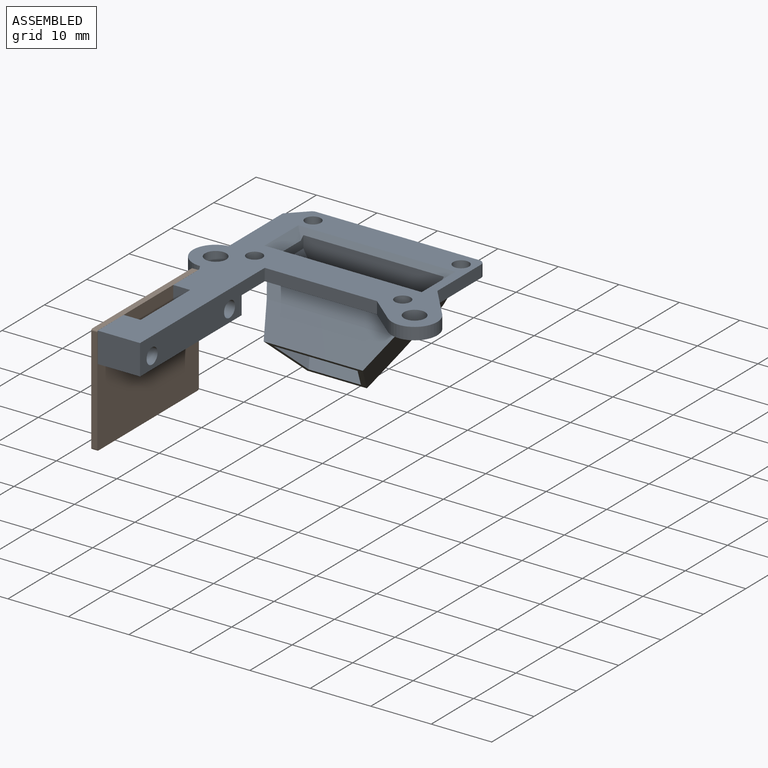
[diagram: assembled view]
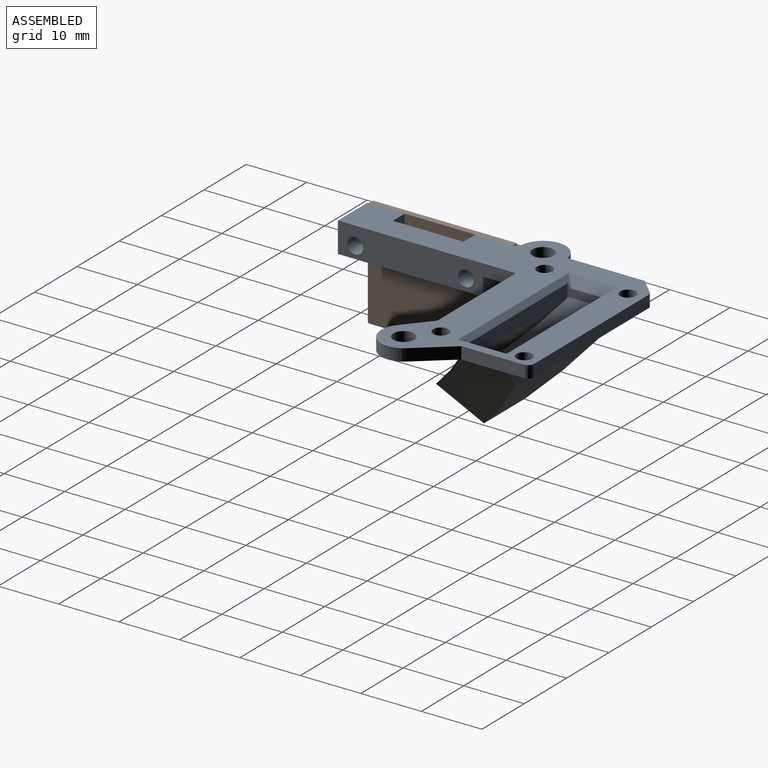
[diagram: assembled view, second angle]
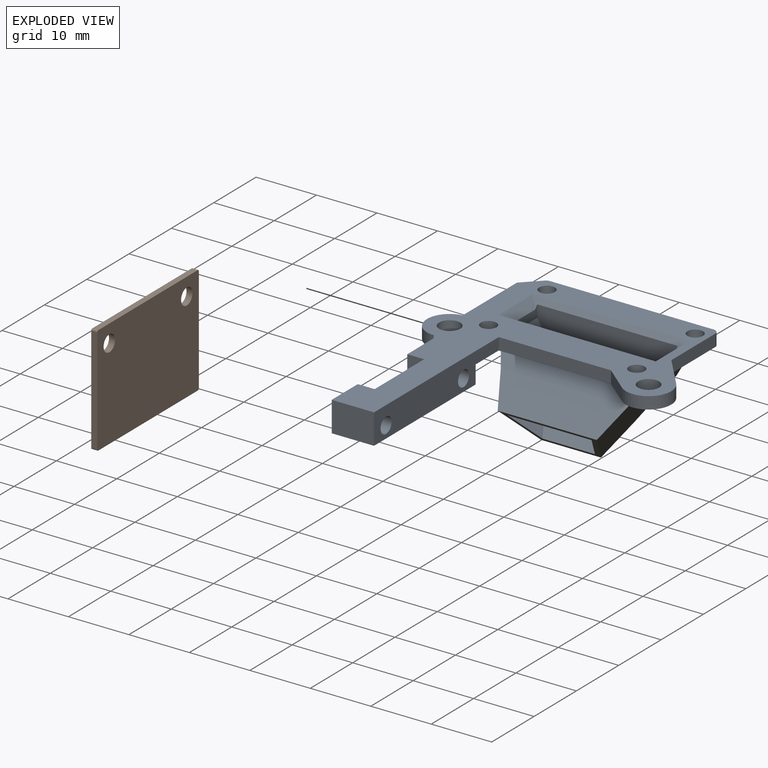
[diagram: exploded view]
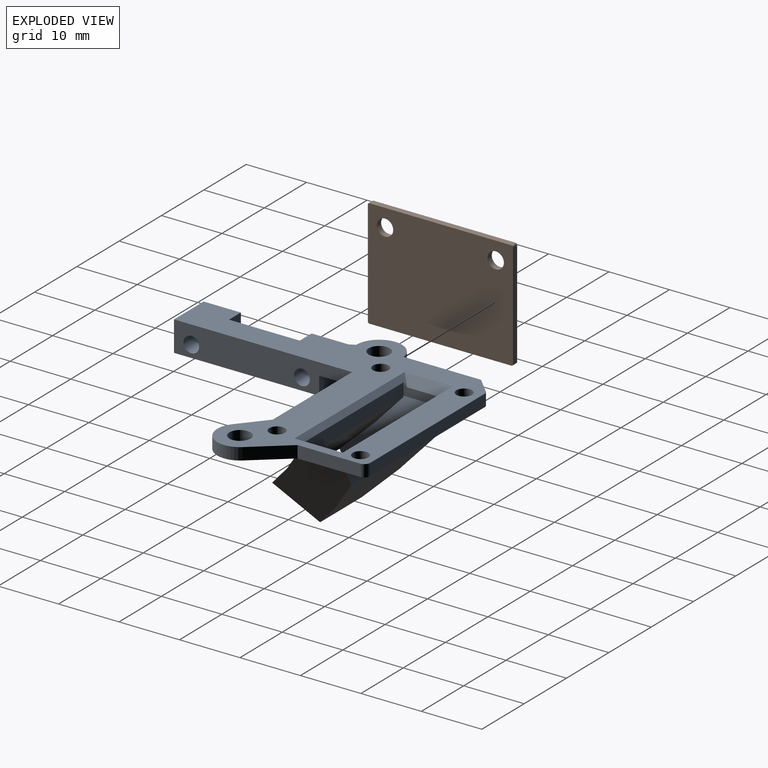
[diagram: exploded view, second angle]
ASSEMBLY  parts=2 mates=2
PART A: 54 faces, bbox 40.4x48.2x16 mm
  f0: plane 6.15x5mm, normal (-1,0,0), area 25.4mm2, adj f1,f2,f37,f47,f48,f52
  f1: plane 48.15x40.4mm, normal (0,0,1), area 585.6mm2, adj f0,f3,f4,f25,f26,f27,f28,f29
  f2: plane 24x7mm, normal (0,0,-1), area 135.2mm2, adj f0,f38,f39,f40,f47,f51,f52,f53
  f3: plane 18.56x2mm, normal (0,-1,0), area 37.1mm2, adj f1,f24,f40,f45
  f4: cylinder r=1mm len=2mm, axis (0,0,-1), area 1.6mm2, adj f1,f24,f26,f42
  f5: plane 21.16x4.13mm, normal (0,-0.71,0.71), area 109.7mm2, adj f6,f9,f11,f13
  f6: plane 16.38x5.66mm, normal (0,-0.71,-0.71), area 32.8mm2, adj f5,f7,f11,f13,f14,f15,f19,f21
  f7: plane 14.91x4.38mm, normal (0,0.71,-0.71), area 76.7mm2, adj f6,f8,f11,f13
  f8: plane 21.82x5.99mm, normal (0,0.77,-0.64), area 143.5mm2, adj f7,f11,f12,f13
  f9: plane 25.18x3.49mm, normal (0,-0.77,0.64), area 105.5mm2, adj f5,f10,f11,f13
  f10: plane 26x0.71mm, normal (0,-1,0), area 18.1mm2, adj f9,f11,f13,f24
  f11: plane 15.06x13.99mm, normal (-0.87,0,-0.5), area 132.7mm2, adj f5,f6,f7,f8,f9,f10,f12,f24
  f12: plane 26x3.62mm, normal (0,1,0), area 86.5mm2, adj f8,f11,f13,f24
  f13: plane 15.06x13.99mm, normal (0.87,0,-0.5), area 132.7mm2, adj f5,f6,f7,f8,f9,f10,f12,f24
  f14: plane 18.68x4.16mm, normal (0,0.71,-0.71), area 95.7mm2, adj f6,f17,f19,f21
  f15: plane 13.69x4.36mm, normal (0,-0.71,0.71), area 68.8mm2, adj f6,f16,f19,f21
  f16: plane 20.31x5.74mm, normal (0,-0.77,0.64), area 127.3mm2, adj f15,f19,f20,f21
  f17: plane 23x3.74mm, normal (0,0.77,-0.64), area 101.7mm2, adj f14,f18,f19,f21
  f18: plane 23.23x2.2mm, normal (0,1,0), area 51.1mm2, adj f17,f19,f21,f22,f23,f29
  f19: plane 13.69x12.62mm, normal (0.87,0,0.5), area 100.3mm2, adj f6,f14,f15,f16,f17,f18,f20,f23
  f20: plane 23.23x4.53mm, normal (0,-1,0), area 101.5mm2, adj f16,f19,f21,f22,f23,f30
  f21: plane 13.69x12.62mm, normal (-0.87,0,0.5), area 100.3mm2, adj f6,f14,f15,f16,f17,f18,f20,f22
  f22: plane 6.4x2mm, normal (-1,0,0), area 9.4mm2, adj f18,f20,f21,f28,f29,f30
  f23: plane 6.4x2mm, normal (1,0,0), area 9.4mm2, adj f18,f19,f20,f29,f30,f31
  f24: plane 40.4x24.15mm, normal (0,0,-1), area 450.4mm2, adj f3,f4,f10,f11,f12,f13,f25,f26
  f25: plane 10.34x2mm, normal (1,0,0), area 20.7mm2, adj f1,f24,f27,f43
  f26: plane 27x2mm, normal (0,1,0), area 54mm2, adj f1,f4,f24,f27
  f27: cylinder r=1mm len=2mm, axis (0,0,1), area 3.1mm2, adj f1,f24,f25,f26
  f28: plane 8x1.39mm, normal (-0.71,0,0.71), area 13mm2, adj f1,f22,f29,f30
  f29: plane 26x1.39mm, normal (0,0.71,0.71), area 29mm2, adj f1,f18,f22,f23,f28,f31
  f30: plane 26x1.39mm, normal (0,-0.71,0.71), area 29mm2, adj f1,f20,f22,f23,f28,f31
  f31: plane 8x1.39mm, normal (0.71,0,0.71), area 13mm2, adj f1,f23,f29,f30
  f32: cylinder r=1.3mm len=2.6mm, axis (0,0,1), area 16.3mm2, adj f1,f24
  f33: cylinder r=1.3mm len=2.6mm, axis (0,0,1), area 16.3mm2, adj f1,f24
  f34: cylinder r=1.3mm len=2.6mm, axis (0,0,1), area 16.3mm2, adj f1,f24
  f35: cylinder r=1.3mm len=2.6mm, axis (0,0,1), area 16.3mm2, adj f1,f24
  f36: cylinder r=1.75mm len=3.5mm, axis (0,0,1), area 22mm2, adj f1,f24
  f37: plane 2x0.9mm, normal (-0.87,-0.5,0), area 2.1mm2, adj f0,f1,f24,f50
  f38: plane 6.15x5mm, normal (-1,0,0), area 25.4mm2, adj f1,f2,f39,f49,f51
  f39: plane 7x5mm, normal (0,-1,0), area 35mm2, adj f1,f2,f38,f40
  f40: plane 29.45x5mm, normal (1,0,0), area 120.3mm2, adj f1,f2,f3,f24,f39,f47,f48,f49
  f41: plane 12.79x2mm, normal (-1,0,0), area 25.6mm2, adj f1,f24,f42,f50
  f42: plane 2.69x2.69mm, normal (-0.71,0.71,0), area 7.6mm2, adj f1,f4,f24,f41
  f43: plane 5.75x4.82mm, normal (0.77,0.64,0), area 15mm2, adj f1,f24,f25,f44
  f44: cylinder r=3.75mm len=6.16mm, axis (0,0,1), area 22.3mm2, adj f1,f24,f43,f45
  f45: plane 4.38x3.67mm, normal (-0.64,-0.77,0), area 11.4mm2, adj f1,f3,f24,f44
  f46: cylinder r=1.75mm len=3.5mm, axis (0,0,1), area 22mm2, adj f1,f24
  f47: plane 7x3mm, normal (0,1,0), area 21mm2, adj f0,f2,f24,f40
  f48: cylinder r=1.3mm len=7mm, axis (-1,0,0), area 57.2mm2, adj f0,f40
  f49: cylinder r=1.3mm len=7mm, axis (-1,0,0), area 57.2mm2, adj f38,f40
  f50: cylinder r=3.75mm len=7.47mm, axis (0,0,-1), area 22.7mm2, adj f1,f24,f37,f41
  f51: plane 5x2.8mm, normal (0,1,0), area 14mm2, adj f1,f2,f38,f53
  f52: plane 5x2.8mm, normal (0,-1,0), area 14mm2, adj f0,f1,f2,f53
  f53: plane 11.7x5mm, normal (-1,0,0), area 58.5mm2, adj f1,f2,f51,f52
PART B: 14 faces, bbox 24x18x6.4 mm
  f0: plane 23.5x1mm, normal (0,-1,0), area 23.5mm2, adj f4,f5,f8,f11
  f1: plane 17.5x1mm, normal (1,0,0), area 17.5mm2, adj f4,f5,f8,f9
  f2: plane 23.5x1mm, normal (0,1,0), area 23.5mm2, adj f4,f5,f9,f10
  f3: plane 17.5x1mm, normal (-1,0,0), area 17.5mm2, adj f4,f5,f10,f11
  f4: plane 24x18mm, normal (0,0,1), area 399.3mm2, adj f0,f1,f2,f3,f6,f7,f8,f9
  f5: plane 24x18mm, normal (0,0,-1), area 420.5mm2, adj f0,f1,f2,f3,f6,f7,f8,f9
  f6: cylinder r=1.35mm len=2.7mm, axis (0,0,1), area 8.5mm2, adj f4,f5
  f7: cylinder r=1.35mm len=2.7mm, axis (0,0,1), area 8.5mm2, adj f4,f5
  f8: cylinder r=0.25mm len=1mm, axis (0,0,-1), area 0.4mm2, adj f0,f1,f4,f5
  f9: cylinder r=0.25mm len=1mm, axis (0,0,1), area 0.4mm2, adj f1,f2,f4,f5
  f10: cylinder r=0.25mm len=1mm, axis (0,0,-1), area 0.4mm2, adj f2,f3,f4,f5
  f11: cylinder r=0.25mm len=1mm, axis (0,0,1), area 0.4mm2, adj f0,f3,f4,f5
  f12: cylinder r=2.6mm len=5.4mm, axis (0,0,-1), area 88.2mm2, adj f4,f13
  f13: plane 5.2x5.2mm, normal (0,0,1), area 21.2mm2, adj f12
PLACE A t=(-10.02,2.74,-0.27)mm fixed
PLACE B rot(axis=(0.58,-0.58,-0.58),120deg) t=(-25.99,-24.06,-7.32)mm
MATE cylindrical B.f7 <-> A.f49  axis (-1,0,0) through (-25.99,-33.21,-1.27)mm
MATE cylindrical B.f6 <-> A.f48  axis (1,0,0) through (-25.99,-14.91,-1.27)mm
